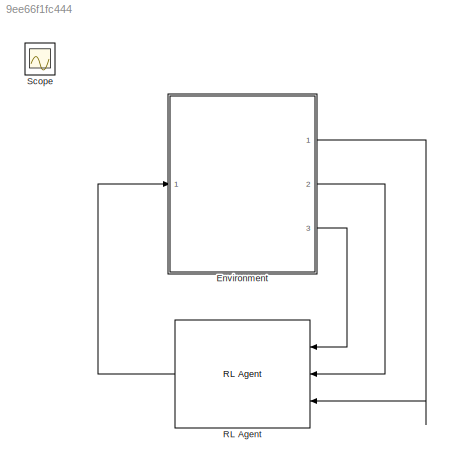
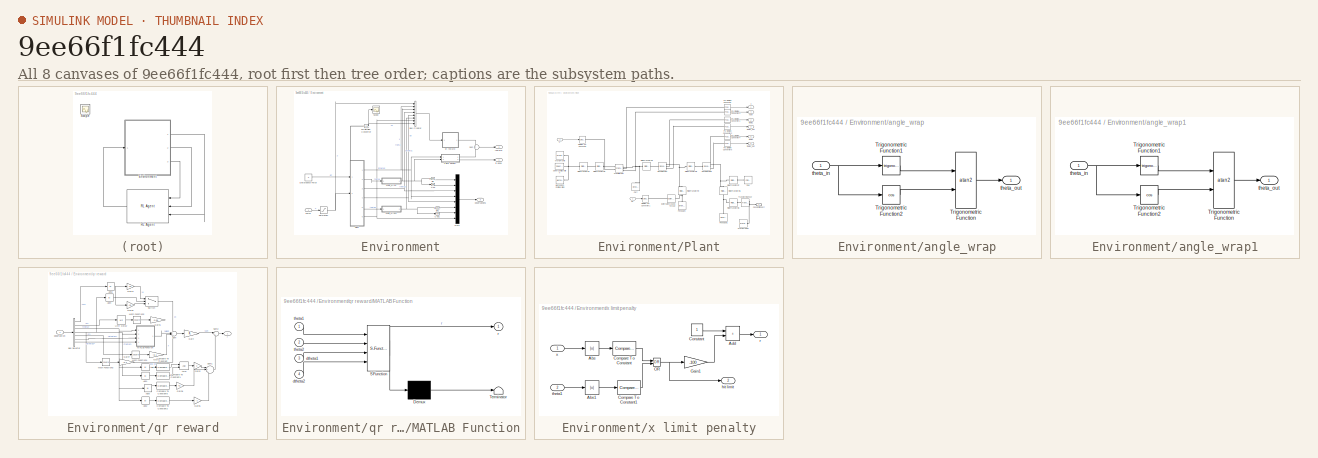
[diagram: thumbnail index - all 8 canvases of the model, root first then tree order]
MODEL slx_9ee66f1fc444
KIND model
CONFIG AbsTol = auto
CONFIG EnableMultiTasking = off
CONFIG FixedStep = auto
CONFIG MaxStep = auto
CONFIG MinStep = auto
CONFIG RelTol = 1e-3
CONFIG SampleTimeConstraint = Unconstrained
CONFIG SolverName = VariableStepAuto
CONFIG StartTime = 0.0
CONFIG StopTime = 10.0
BLOCK [SubSystem] Environment
  Ports = [1, 3]
  RequestExecContextInheritance = off
BLOCK [BusCreator] Environment/Bus Creator
  DisplayOption = bar
  InheritFromInputs = on
  Inputs = 8
  Ports = [8, 1]
BLOCK [Trigonometry] Environment/Cos
  Operator = cos
  Ports = [1, 1]
BLOCK [Trigonometry] Environment/Cos1
  Operator = cos
  Ports = [1, 1]
BLOCK [Constant] Environment/Disturbance Force
  Value = 0
BLOCK [Inport] Environment/Force
BLOCK [Mux] Environment/Mux1
  DisplayOption = bar
  Inputs = 8
  Ports = [8, 1]
BLOCK [Reference] Environment/PS-Simulink Converter  REF=nesl_utility/PS-Simulink
Converter
  Ports = [0, 1, 0, 0, 0, 1]
  SourceBlock = nesl_utility/PS-Simulink\nConverter
  SourceProductBaseCode = PW,SS
  SourceType = PS-Simulink\nConverter
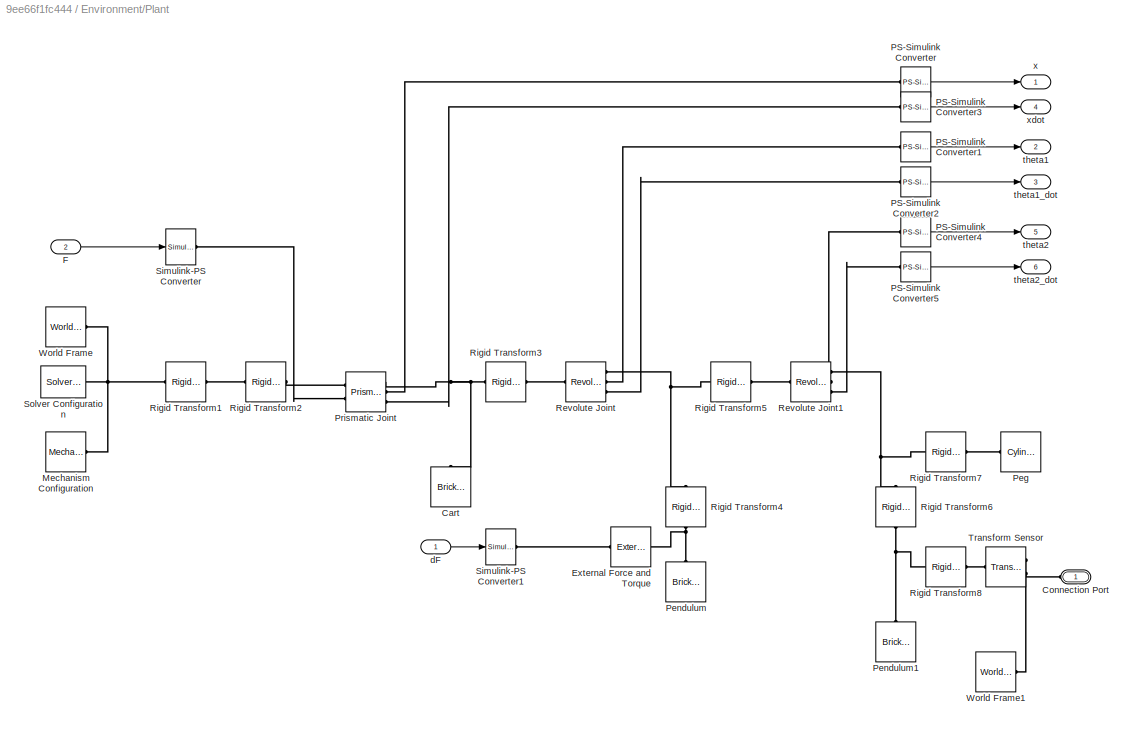
BLOCK [SubSystem] Environment/Plant
  PortSchema = {"entries":[{"content":{"sides":[{"content":{"connectorIds":["In1","In2"]},"type":"ConnectorPlacement.EquallySpacedRectSide","uuid":"779d19eb-a720-4e7e-8892-25cfee938fdb"},{"content":{"connectorIds":["Out1","Out2","Out3","Out4","Out5","Out6"],"side":"RIGHT"},"type":"ConnectorPlacement.EquallySpacedRectSide","uuid":"3de84fcb-1dc7-411b-b896-cb30b770d570"},{"content":{"connectorIds":["LConn1"],"side"...<+289ch>
  Ports = [2, 6, 0, 0, 0, 1]
  RequestExecContextInheritance = off
BLOCK [Reference] Environment/Plant/Cart  REF=sm_lib/Body Elements/Brick Solid
  NameLocation = right
  Ports = [0, 0, 0, 0, 0, 0, 1]
  SourceBlock = sm_lib/Body Elements/Brick Solid
  SourceProductBaseCode = MS
  SourceType = Brick Solid
BLOCK [PMIOPort] Environment/Plant/Connection Port
  NameLocation = top
  Side = Left
BLOCK [Reference] Environment/Plant/External Force and Torque  REF=sm_lib/Forces and
Torques/External Force
and Torque
  Ports = [0, 0, 0, 0, 0, 1, 1]
  SourceBlock = sm_lib/Forces and\nTorques/External Force\nand Torque
  SourceProductBaseCode = MS
  SourceType = External Force\nand Torque
BLOCK [Inport] Environment/Plant/F
  Port = 2
BLOCK [Reference] Environment/Plant/Mechanism Configuration  REF=sm_lib/Utilities/Mechanism
Configuration
  Ports = [0, 0, 0, 0, 0, 0, 1]
  SourceBlock = sm_lib/Utilities/Mechanism\nConfiguration
  SourceProductBaseCode = MS
  SourceType = Mechanism\nConfiguration
BLOCK [Reference] Environment/Plant/PS-Simulink Converter  REF=nesl_utility/PS-Simulink
Converter
  Ports = [0, 1, 0, 0, 0, 1]
  SourceBlock = nesl_utility/PS-Simulink\nConverter
  SourceProductBaseCode = PW,SS
  SourceType = PS-Simulink\nConverter
BLOCK [Reference] Environment/Plant/PS-Simulink Converter1  REF=nesl_utility/PS-Simulink
Converter
  Ports = [0, 1, 0, 0, 0, 1]
  SourceBlock = nesl_utility/PS-Simulink\nConverter
  SourceProductBaseCode = PW,SS
  SourceType = PS-Simulink\nConverter
BLOCK [Reference] Environment/Plant/PS-Simulink Converter2  REF=nesl_utility/PS-Simulink
Converter
  Ports = [0, 1, 0, 0, 0, 1]
  SourceBlock = nesl_utility/PS-Simulink\nConverter
  SourceProductBaseCode = PW,SS
  SourceType = PS-Simulink\nConverter
BLOCK [Reference] Environment/Plant/PS-Simulink Converter3  REF=nesl_utility/PS-Simulink
Converter
  Ports = [0, 1, 0, 0, 0, 1]
  SourceBlock = nesl_utility/PS-Simulink\nConverter
  SourceProductBaseCode = PW,SS
  SourceType = PS-Simulink\nConverter
BLOCK [Reference] Environment/Plant/PS-Simulink Converter4  REF=nesl_utility/PS-Simulink
Converter
  Ports = [0, 1, 0, 0, 0, 1]
  SourceBlock = nesl_utility/PS-Simulink\nConverter
  SourceProductBaseCode = PW,SS
  SourceType = PS-Simulink\nConverter
BLOCK [Reference] Environment/Plant/PS-Simulink Converter5  REF=nesl_utility/PS-Simulink
Converter
  Ports = [0, 1, 0, 0, 0, 1]
  SourceBlock = nesl_utility/PS-Simulink\nConverter
  SourceProductBaseCode = PW,SS
  SourceType = PS-Simulink\nConverter
BLOCK [Reference] Environment/Plant/Peg  REF=sm_lib/Body Elements/Cylindrical Solid
  NameLocation = top
  Ports = [0, 0, 0, 0, 0, 0, 1]
  SourceBlock = sm_lib/Body Elements/Cylindrical Solid
  SourceProductBaseCode = MS
  SourceType = Cylindrical Solid
BLOCK [Reference] Environment/Plant/Pendulum  REF=sm_lib/Body Elements/Brick Solid
  NameLocation = right
  Ports = [0, 0, 0, 0, 0, 0, 1]
  SourceBlock = sm_lib/Body Elements/Brick Solid
  SourceProductBaseCode = MS
  SourceType = Brick Solid
BLOCK [Reference] Environment/Plant/Pendulum1  REF=sm_lib/Body Elements/Brick Solid
  NameLocation = right
  Ports = [0, 0, 0, 0, 0, 0, 1]
  SourceBlock = sm_lib/Body Elements/Brick Solid
  SourceProductBaseCode = MS
  SourceType = Brick Solid
BLOCK [Reference] Environment/Plant/Prismatic Joint  REF=sm_lib/Joints/Prismatic
Joint
  Ports = [0, 0, 0, 0, 0, 2, 3]
  SourceBlock = sm_lib/Joints/Prismatic\nJoint
  SourceProductBaseCode = MS
  SourceType = Prismatic\nJoint
BLOCK [Reference] Environment/Plant/Revolute Joint  REF=sm_lib/Joints/Revolute Joint
  Ports = [0, 0, 0, 0, 0, 1, 3]
  SourceBlock = sm_lib/Joints/Revolute Joint
  SourceProductBaseCode = MS
  SourceType = Revolute Joint
BLOCK [Reference] Environment/Plant/Revolute Joint1  REF=sm_lib/Joints/Revolute Joint
  Ports = [0, 0, 0, 0, 0, 1, 3]
  SourceBlock = sm_lib/Joints/Revolute Joint
  SourceProductBaseCode = MS
  SourceType = Revolute Joint
BLOCK [Reference] Environment/Plant/Rigid Transform1  REF=sm_lib/Frames and
Transforms/Rigid
Transform
  Ports = [0, 0, 0, 0, 0, 1, 1]
  SourceBlock = sm_lib/Frames and\nTransforms/Rigid\nTransform
  SourceProductBaseCode = MS
  SourceType = Rigid\nTransform
BLOCK [Reference] Environment/Plant/Rigid Transform2  REF=sm_lib/Frames and
Transforms/Rigid
Transform
  Ports = [0, 0, 0, 0, 0, 1, 1]
  SourceBlock = sm_lib/Frames and\nTransforms/Rigid\nTransform
  SourceProductBaseCode = MS
  SourceType = Rigid\nTransform
BLOCK [Reference] Environment/Plant/Rigid Transform3  REF=sm_lib/Frames and
Transforms/Rigid
Transform
  Ports = [0, 0, 0, 0, 0, 1, 1]
  SourceBlock = sm_lib/Frames and\nTransforms/Rigid\nTransform
  SourceProductBaseCode = MS
  SourceType = Rigid\nTransform
BLOCK [Reference] Environment/Plant/Rigid Transform4  REF=sm_lib/Frames and
Transforms/Rigid
Transform
  NameLocation = left
  Ports = [0, 0, 0, 0, 0, 1, 1]
  SourceBlock = sm_lib/Frames and\nTransforms/Rigid\nTransform
  SourceProductBaseCode = MS
  SourceType = Rigid\nTransform
BLOCK [Reference] Environment/Plant/Rigid Transform5  REF=sm_lib/Frames and
Transforms/Rigid
Transform
  Ports = [0, 0, 0, 0, 0, 1, 1]
  SourceBlock = sm_lib/Frames and\nTransforms/Rigid\nTransform
  SourceProductBaseCode = MS
  SourceType = Rigid\nTransform
BLOCK [Reference] Environment/Plant/Rigid Transform6  REF=sm_lib/Frames and
Transforms/Rigid
Transform
  NameLocation = left
  Ports = [0, 0, 0, 0, 0, 1, 1]
  SourceBlock = sm_lib/Frames and\nTransforms/Rigid\nTransform
  SourceProductBaseCode = MS
  SourceType = Rigid\nTransform
BLOCK [Reference] Environment/Plant/Rigid Transform7  REF=sm_lib/Frames and
Transforms/Rigid
Transform
  Ports = [0, 0, 0, 0, 0, 1, 1]
  SourceBlock = sm_lib/Frames and\nTransforms/Rigid\nTransform
  SourceProductBaseCode = MS
  SourceType = Rigid\nTransform
BLOCK [Reference] Environment/Plant/Rigid Transform8  REF=sm_lib/Frames and
Transforms/Rigid
Transform
  Ports = [0, 0, 0, 0, 0, 1, 1]
  SourceBlock = sm_lib/Frames and\nTransforms/Rigid\nTransform
  SourceProductBaseCode = MS
  SourceType = Rigid\nTransform
BLOCK [Reference] Environment/Plant/Simulink-PS Converter  REF=nesl_utility/Simulink-PS
Converter
  Ports = [1, 0, 0, 0, 0, 0, 1]
  SourceBlock = nesl_utility/Simulink-PS\nConverter
  SourceProductBaseCode = PW,SS
  SourceType = Simulink-PS\nConverter
BLOCK [Reference] Environment/Plant/Simulink-PS Converter1  REF=nesl_utility/Simulink-PS
Converter
  Ports = [1, 0, 0, 0, 0, 0, 1]
  SourceBlock = nesl_utility/Simulink-PS\nConverter
  SourceProductBaseCode = PW,SS
  SourceType = Simulink-PS\nConverter
BLOCK [Reference] Environment/Plant/Solver Configuration  REF=nesl_utility/Solver
Configuration
  Ports = [0, 0, 0, 0, 0, 0, 1]
  SourceBlock = nesl_utility/Solver\nConfiguration
  SourceProductBaseCode = PW,SS
  SourceType = Solver\nConfiguration
BLOCK [Reference] Environment/Plant/Transform Sensor  REF=sm_lib/Frames and
Transforms/Transform
Sensor
  Ports = [0, 0, 0, 0, 0, 1, 2]
  SourceBlock = sm_lib/Frames and\nTransforms/Transform\nSensor
  SourceProductBaseCode = MS
  SourceType = Transform\nSensor
BLOCK [Reference] Environment/Plant/World Frame  REF=sm_lib/Frames and
Transforms/World Frame
  Ports = [0, 0, 0, 0, 0, 0, 1]
  SourceBlock = sm_lib/Frames and\nTransforms/World Frame
  SourceProductBaseCode = MS
  SourceType = World Frame
BLOCK [Reference] Environment/Plant/World Frame1  REF=sm_lib/Frames and
Transforms/World Frame
  Ports = [0, 0, 0, 0, 0, 0, 1]
  SourceBlock = sm_lib/Frames and\nTransforms/World Frame
  SourceProductBaseCode = MS
  SourceType = World Frame
BLOCK [Inport] Environment/Plant/dF
BLOCK [Outport] Environment/Plant/theta1
  Port = 2
  VectorParamsAs1DForOutWhenUnconnected = off
BLOCK [Outport] Environment/Plant/theta1_dot
  Port = 3
  VectorParamsAs1DForOutWhenUnconnected = off
BLOCK [Outport] Environment/Plant/theta2
  Port = 5
  VectorParamsAs1DForOutWhenUnconnected = off
BLOCK [Outport] Environment/Plant/theta2_dot
  Port = 6
  VectorParamsAs1DForOutWhenUnconnected = off
BLOCK [Outport] Environment/Plant/x
  VectorParamsAs1DForOutWhenUnconnected = off
BLOCK [Outport] Environment/Plant/xdot
  Port = 4
  VectorParamsAs1DForOutWhenUnconnected = off
BLOCK [Saturate] Environment/Saturation
  LowerLimit = -20
  UpperLimit = 20
BLOCK [Scope] Environment/Scope
  Commented = on
  Floating = off
  NumInputPorts = 1
  Ports = [1]
  ScopeSpecificationString = Simulink.scopes.TimeScopeBlockCfg('CurrentConfiguration', extmgr.ConfigurationSet(extmgr.Configuration('Core','General UI',true),extmgr.Configuration('Core','Source UI',true),extmgr.Configuration('Sources','WiredSimulink',true),extmgr.Configuration('Visuals','Time Domain',true,'SerializedDisplays',{struct('MinYLimReal','-14.54995','MaxYLimReal','18.67644','YLabelReal','','MinYLimMag','0.00000','Ma...<+1361ch>
BLOCK [Trigonometry] Environment/Sin
  Ports = [1, 1]
BLOCK [Trigonometry] Environment/Sin1
  Ports = [1, 1]
BLOCK [Sum] Environment/Sum
  Ports = [2, 1]
BLOCK [SubSystem] Environment/angle_wrap
  Ports = [1, 1]
  RequestExecContextInheritance = off
BLOCK [Trigonometry] Environment/angle_wrap/Trigonometric Function
  Operator = atan2
  Ports = [2, 1]
BLOCK [Trigonometry] Environment/angle_wrap/Trigonometric Function1
  Ports = [1, 1]
BLOCK [Trigonometry] Environment/angle_wrap/Trigonometric Function2
  Operator = cos
  Ports = [1, 1]
BLOCK [Inport] Environment/angle_wrap/theta_in
BLOCK [Outport] Environment/angle_wrap/theta_out
  VectorParamsAs1DForOutWhenUnconnected = off
BLOCK [SubSystem] Environment/angle_wrap1
  Ports = [1, 1]
  RequestExecContextInheritance = off
BLOCK [Trigonometry] Environment/angle_wrap1/Trigonometric Function
  Operator = atan2
  Ports = [2, 1]
BLOCK [Trigonometry] Environment/angle_wrap1/Trigonometric Function1
  Ports = [1, 1]
BLOCK [Trigonometry] Environment/angle_wrap1/Trigonometric Function2
  Operator = cos
  Ports = [1, 1]
BLOCK [Inport] Environment/angle_wrap1/theta_in
BLOCK [Outport] Environment/angle_wrap1/theta_out
  VectorParamsAs1DForOutWhenUnconnected = off
BLOCK [Outport] Environment/is done
  VectorParamsAs1DForOutWhenUnconnected = off
BLOCK [Outport] Environment/observations
  Port = 3
  VectorParamsAs1DForOutWhenUnconnected = off
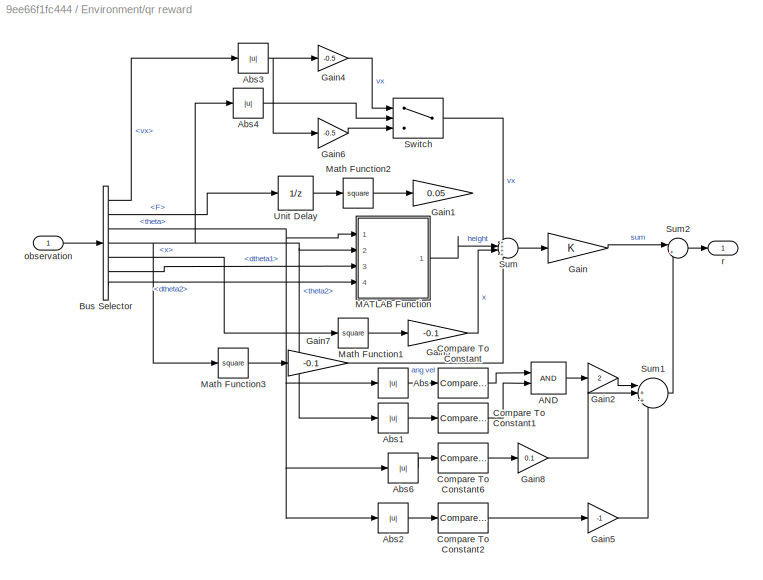
BLOCK [SubSystem] Environment/qr reward
  Ports = [1, 1]
  RequestExecContextInheritance = off
BLOCK [Logic] Environment/qr reward/AND
  AllPortsSameDT = off
  Commented = on
  IconShape = distinctive
  OutDataTypeStr = boolean
  Ports = [2, 1]
BLOCK [Abs] Environment/qr reward/Abs
  Commented = on
  SaturateOnIntegerOverflow = off
BLOCK [Abs] Environment/qr reward/Abs1
  Commented = on
  SaturateOnIntegerOverflow = off
BLOCK [Abs] Environment/qr reward/Abs2
  Commented = on
  SaturateOnIntegerOverflow = off
BLOCK [Abs] Environment/qr reward/Abs3
  SaturateOnIntegerOverflow = off
BLOCK [Abs] Environment/qr reward/Abs4
  SaturateOnIntegerOverflow = off
BLOCK [Abs] Environment/qr reward/Abs6
  Commented = on
  SaturateOnIntegerOverflow = off
BLOCK [BusSelector] Environment/qr reward/Bus Selector
  OutputSignals = vx,F,theta,theta2,x,dtheta1,dtheta2
  Ports = [1, 7]
BLOCK [Reference] Environment/qr reward/Compare To Constant  REF=simulink/Logic and Bit
Operations/Compare
To Constant
  Commented = on
  Ports = [1, 1]
  SourceBlock = simulink/Logic and Bit\nOperations/Compare\nTo Constant
  SourceProductBaseCode = SL
  SourceType = Compare To Constant
BLOCK [Reference] Environment/qr reward/Compare To Constant1  REF=simulink/Logic and Bit
Operations/Compare
To Constant
  Commented = on
  Ports = [1, 1]
  SourceBlock = simulink/Logic and Bit\nOperations/Compare\nTo Constant
  SourceProductBaseCode = SL
  SourceType = Compare To Constant
BLOCK [Reference] Environment/qr reward/Compare To Constant2  REF=simulink/Logic and Bit
Operations/Compare
To Constant
  Commented = on
  Ports = [1, 1]
  SourceBlock = simulink/Logic and Bit\nOperations/Compare\nTo Constant
  SourceProductBaseCode = SL
  SourceType = Compare To Constant
BLOCK [Reference] Environment/qr reward/Compare To Constant6  REF=simulink/Logic and Bit
Operations/Compare
To Constant
  Commented = on
  Ports = [1, 1]
  SourceBlock = simulink/Logic and Bit\nOperations/Compare\nTo Constant
  SourceProductBaseCode = SL
  SourceType = Compare To Constant
BLOCK [Gain] Environment/qr reward/Gain
BLOCK [Gain] Environment/qr reward/Gain1
  Commented = on
  Gain = 0.05
BLOCK [Gain] Environment/qr reward/Gain2
  Commented = on
  Gain = 2
BLOCK [Gain] Environment/qr reward/Gain3
  Gain = -0.1
BLOCK [Gain] Environment/qr reward/Gain4
  Gain = -0.5
BLOCK [Gain] Environment/qr reward/Gain5
  Commented = on
  Gain = -1
BLOCK [Gain] Environment/qr reward/Gain6
  Gain = -0.5
BLOCK [Gain] Environment/qr reward/Gain7
  Commented = on
  Gain = -0.1
BLOCK [Gain] Environment/qr reward/Gain8
  Commented = on
  Gain = 0.1
BLOCK [SubSystem] Environment/qr reward/MATLAB Function
  ErrorFcn = Stateflow.Translate.translate
  PermitHierarchicalResolution = ExplicitOnly
  Ports = [4, 1]
  RequestExecContextInheritance = off
  SFBlockType = MATLAB Function
  TreatAsAtomicUnit = on
BLOCK [Demux] Environment/qr reward/MATLAB Function/ Demux 
  Outputs = 1
  Ports = [1, 1]
BLOCK [S-Function] Environment/qr reward/MATLAB Function/ SFunction 
  EnableBusSupport = on
  FunctionName = sf_sfun
  PortCounts = [4 2]
  Ports = [4, 2]
  SFcnIsStateOwnerBlock = off
  SFunctionDeploymentMode = off
  Tag = Stateflow S-Function 2
BLOCK [Terminator] Environment/qr reward/MATLAB Function/ Terminator 
BLOCK [Inport] Environment/qr reward/MATLAB Function/dtheta1
  Port = 3
BLOCK [Inport] Environment/qr reward/MATLAB Function/dtheta2
  Port = 4
BLOCK [Outport] Environment/qr reward/MATLAB Function/r
BLOCK [Inport] Environment/qr reward/MATLAB Function/theta1
BLOCK [Inport] Environment/qr reward/MATLAB Function/theta2
  Port = 2
BLOCK [Math] Environment/qr reward/Math Function1
  Operator = square
  Ports = [1, 1]
  SignedPower = on
BLOCK [Math] Environment/qr reward/Math Function2
  Commented = on
  Operator = square
  Ports = [1, 1]
  SignedPower = on
BLOCK [Math] Environment/qr reward/Math Function3
  Commented = on
  Operator = square
  Ports = [1, 1]
  SignedPower = on
BLOCK [Sum] Environment/qr reward/Sum
  Inputs = ++++
  Ports = [4, 1]
BLOCK [Sum] Environment/qr reward/Sum1
  Commented = on
  Inputs = |+++
  Ports = [3, 1]
BLOCK [Sum] Environment/qr reward/Sum2
  Inputs = |++
  Ports = [2, 1]
BLOCK [Switch] Environment/qr reward/Switch
  Criteria = u2 > Threshold
  InputSameDT = off
  SaturateOnIntegerOverflow = off
  Threshold = 50*pi/180
BLOCK [UnitDelay] Environment/qr reward/Unit Delay
  Commented = on
  HasFrameUpgradeWarning = on
  SampleTime = Ts
BLOCK [Inport] Environment/qr reward/observation
BLOCK [Outport] Environment/qr reward/r
  VectorParamsAs1DForOutWhenUnconnected = off
BLOCK [Outport] Environment/reward
  Port = 2
  VectorParamsAs1DForOutWhenUnconnected = off
BLOCK [SubSystem] Environment/x limit penalty
  Ports = [2, 2]
  RequestExecContextInheritance = off
BLOCK [Abs] Environment/x limit penalty/Abs
  SaturateOnIntegerOverflow = off
BLOCK [Abs] Environment/x limit penalty/Abs1
  Commented = on
  SaturateOnIntegerOverflow = off
BLOCK [Sum] Environment/x limit penalty/Add
  IconShape = rectangular
  Ports = [2, 1]
BLOCK [Reference] Environment/x limit penalty/Compare To Constant  REF=simulink/Logic and Bit
Operations/Compare
To Constant
  Ports = [1, 1]
  SourceBlock = simulink/Logic and Bit\nOperations/Compare\nTo Constant
  SourceProductBaseCode = SL
  SourceType = Compare To Constant
BLOCK [Reference] Environment/x limit penalty/Compare To Constant1  REF=simulink/Logic and Bit
Operations/Compare
To Constant
  Commented = on
  Ports = [1, 1]
  SourceBlock = simulink/Logic and Bit\nOperations/Compare\nTo Constant
  SourceProductBaseCode = SL
  SourceType = Compare To Constant
BLOCK [Constant] Environment/x limit penalty/Constant
  Commented = on
BLOCK [Gain] Environment/x limit penalty/Gain1
  Gain = -100
BLOCK [Logic] Environment/x limit penalty/OR
  AllPortsSameDT = off
  IconShape = distinctive
  Operator = OR
  OutDataTypeStr = boolean
  Ports = [2, 1]
BLOCK [Outport] Environment/x limit penalty/hit limit
  Port = 2
  VectorParamsAs1DForOutWhenUnconnected = off
BLOCK [Outport] Environment/x limit penalty/r
  VectorParamsAs1DForOutWhenUnconnected = off
BLOCK [Inport] Environment/x limit penalty/theta1
  Port = 2
BLOCK [Inport] Environment/x limit penalty/x
BLOCK [Reference] RL Agent  REF=rllib/RL Agent
  Ports = [3, 1]
  SourceBlock = rllib/RL Agent
  SourceProductBaseCode = RL
  SourceType = RL Agent
BLOCK [Scope] Scope
  Floating = off
  IOType = viewer
  NumInputPorts = 1
  Ports = []
  ScopeSpecificationString = Simulink.scopes.TimeScopeBlockCfg('CurrentConfiguration', extmgr.ConfigurationSet(extmgr.Configuration('Core','General UI',true),extmgr.Configuration('Core','Source UI',true),extmgr.Configuration('Sources','WiredSimulink',true,'DataLoggingVariableName','ScopeData1'),extmgr.Configuration('Visuals','Time Domain',true,'InputProcessing','FrameProcessing','SerializedDisplays',{struct('MinYLimReal','-8....<+4849ch>
LINE Environment/Bus Creator:1 -> Environment/qr reward:1
LINE Environment/Cos1:1 -> Environment/Mux1:7
LINE Environment/Cos:1 -> Environment/Mux1:2
LINE Environment/Disturbance Force:1 -> Environment/Plant:1
LINE Environment/Force:1 -> Environment/Saturation:1
LINE Environment/Mux1:1 -> Environment/observations:1
NET Environment/PS-Simulink Converter:1 -> Environment/Bus Creator:8, Environment/Scope:1
LINE Environment/Plant/F:1 -> Environment/Plant/Simulink-PS Converter:1
LINE Environment/Plant/PS-Simulink Converter1:1 -> Environment/Plant/theta1:1
LINE Environment/Plant/PS-Simulink Converter2:1 -> Environment/Plant/theta1_dot:1
LINE Environment/Plant/PS-Simulink Converter3:1 -> Environment/Plant/xdot:1
LINE Environment/Plant/PS-Simulink Converter4:1 -> Environment/Plant/theta2:1
LINE Environment/Plant/PS-Simulink Converter5:1 -> Environment/Plant/theta2_dot:1
LINE Environment/Plant/PS-Simulink Converter:1 -> Environment/Plant/x:1
LINE Environment/Plant/dF:1 -> Environment/Plant/Simulink-PS Converter1:1
NET Environment/Plant:1 -> Environment/Bus Creator:2, Environment/Mux1:4, Environment/x limit penalty:1
LINE Environment/Plant:2 -> Environment/angle_wrap:1
NET Environment/Plant:3 -> Environment/Bus Creator:4, Environment/Mux1:3
NET Environment/Plant:4 -> Environment/Bus Creator:5, Environment/Mux1:5
LINE Environment/Plant:5 -> Environment/angle_wrap1:1
NET Environment/Plant:6 -> Environment/Bus Creator:7, Environment/Mux1:8
NET Environment/Saturation:1 -> Environment/Bus Creator:1, Environment/Plant:2
LINE Environment/Sin1:1 -> Environment/Mux1:6
LINE Environment/Sin:1 -> Environment/Mux1:1
LINE Environment/Sum:1 -> Environment/reward:1
LINE Environment/angle_wrap/Trigonometric Function1:1 -> Environment/angle_wrap/Trigonometric Function:1
LINE Environment/angle_wrap/Trigonometric Function2:1 -> Environment/angle_wrap/Trigonometric Function:2
LINE Environment/angle_wrap/Trigonometric Function:1 -> Environment/angle_wrap/theta_out:1
NET Environment/angle_wrap/theta_in:1 -> Environment/angle_wrap/Trigonometric Function1:1, Environment/angle_wrap/Trigonometric Function2:1
LINE Environment/angle_wrap1/Trigonometric Function1:1 -> Environment/angle_wrap1/Trigonometric Function:1
LINE Environment/angle_wrap1/Trigonometric Function2:1 -> Environment/angle_wrap1/Trigonometric Function:2
LINE Environment/angle_wrap1/Trigonometric Function:1 -> Environment/angle_wrap1/theta_out:1
NET Environment/angle_wrap1/theta_in:1 -> Environment/angle_wrap1/Trigonometric Function1:1, Environment/angle_wrap1/Trigonometric Function2:1
NET Environment/angle_wrap1:1 -> Environment/Bus Creator:6, Environment/Cos1:1, Environment/Sin1:1
NET Environment/angle_wrap:1 -> Environment/Bus Creator:3, Environment/Cos:1, Environment/Sin:1, Environment/x limit penalty:2
LINE Environment/qr reward/AND:1 -> Environment/qr reward/Gain2:1
LINE Environment/qr reward/Abs1:1 -> Environment/qr reward/Compare To Constant1:1
LINE Environment/qr reward/Abs2:1 -> Environment/qr reward/Compare To Constant2:1
NET Environment/qr reward/Abs3:1 -> Environment/qr reward/Gain4:1, Environment/qr reward/Gain6:1
LINE Environment/qr reward/Abs4:1 -> Environment/qr reward/Switch:2
LINE Environment/qr reward/Abs6:1 -> Environment/qr reward/Compare To Constant6:1
LINE Environment/qr reward/Abs:1 -> Environment/qr reward/Compare To Constant:1
LINE Environment/qr reward/Bus Selector:1 -> Environment/qr reward/Abs3:1
LINE Environment/qr reward/Bus Selector:2 -> Environment/qr reward/Unit Delay:1
NET Environment/qr reward/Bus Selector:3 -> Environment/qr reward/Abs2:1, Environment/qr reward/Abs6:1, Environment/qr reward/Abs:1, Environment/qr reward/MATLAB Function:1
NET Environment/qr reward/Bus Selector:4 -> Environment/qr reward/Abs1:1, Environment/qr reward/Abs4:1, Environment/qr reward/MATLAB Function:2, Environment/qr reward/Math Function3:1
LINE Environment/qr reward/Bus Selector:5 -> Environment/qr reward/Math Function1:1
LINE Environment/qr reward/Bus Selector:6 -> Environment/qr reward/MATLAB Function:3
LINE Environment/qr reward/Bus Selector:7 -> Environment/qr reward/MATLAB Function:4
LINE Environment/qr reward/Compare To Constant1:1 -> Environment/qr reward/AND:2
LINE Environment/qr reward/Compare To Constant2:1 -> Environment/qr reward/Gain5:1
LINE Environment/qr reward/Compare To Constant6:1 -> Environment/qr reward/Gain8:1
LINE Environment/qr reward/Compare To Constant:1 -> Environment/qr reward/AND:1
LINE Environment/qr reward/Gain2:1 -> Environment/qr reward/Sum1:1
LINE Environment/qr reward/Gain3:1 -> Environment/qr reward/Sum:3
LINE Environment/qr reward/Gain4:1 -> Environment/qr reward/Switch:1
LINE Environment/qr reward/Gain5:1 -> Environment/qr reward/Sum1:3
LINE Environment/qr reward/Gain6:1 -> Environment/qr reward/Switch:3
LINE Environment/qr reward/Gain7:1 -> Environment/qr reward/Sum:4
LINE Environment/qr reward/Gain8:1 -> Environment/qr reward/Sum1:2
LINE Environment/qr reward/Gain:1 -> Environment/qr reward/Sum2:1
LINE Environment/qr reward/MATLAB Function:1 -> Environment/qr reward/Sum:2
LINE Environment/qr reward/Math Function1:1 -> Environment/qr reward/Gain3:1
LINE Environment/qr reward/Math Function2:1 -> Environment/qr reward/Gain1:1
LINE Environment/qr reward/Math Function3:1 -> Environment/qr reward/Gain7:1
LINE Environment/qr reward/Sum1:1 -> Environment/qr reward/Sum2:2
LINE Environment/qr reward/Sum2:1 -> Environment/qr reward/r:1
LINE Environment/qr reward/Sum:1 -> Environment/qr reward/Gain:1
LINE Environment/qr reward/Switch:1 -> Environment/qr reward/Sum:1
LINE Environment/qr reward/Unit Delay:1 -> Environment/qr reward/Math Function2:1
LINE Environment/qr reward/observation:1 -> Environment/qr reward/Bus Selector:1
LINE Environment/qr reward:1 -> Environment/Sum:1
LINE Environment/x limit penalty/Abs1:1 -> Environment/x limit penalty/Compare To Constant1:1
LINE Environment/x limit penalty/Abs:1 -> Environment/x limit penalty/Compare To Constant:1
LINE Environment/x limit penalty/Add:1 -> Environment/x limit penalty/r:1
LINE Environment/x limit penalty/Compare To Constant1:1 -> Environment/x limit penalty/OR:2
LINE Environment/x limit penalty/Compare To Constant:1 -> Environment/x limit penalty/OR:1
LINE Environment/x limit penalty/Constant:1 -> Environment/x limit penalty/Add:1
LINE Environment/x limit penalty/Gain1:1 -> Environment/x limit penalty/Add:2
NET Environment/x limit penalty/OR:1 -> Environment/x limit penalty/Gain1:1, Environment/x limit penalty/hit limit:1
LINE Environment/x limit penalty/theta1:1 -> Environment/x limit penalty/Abs1:1
LINE Environment/x limit penalty/x:1 -> Environment/x limit penalty/Abs:1
LINE Environment/x limit penalty:1 -> Environment/Sum:2
LINE Environment/x limit penalty:2 -> Environment/is done:1
LINE Environment:1 -> RL Agent:3
LINE Environment:2 -> RL Agent:2
LINE Environment:3 -> RL Agent:1
LINE RL Agent:1 -> Environment:1
PLINE Environment/PS-Simulink Converter:LConn1 -- Environment/Plant:LConn1
PNET net1: Environment/Plant/Cart:RConn1 -- Environment/Plant/Prismatic Joint:RConn1 -- Environment/Plant/Rigid Transform3:LConn1
PLINE Environment/Plant/Connection Port:RConn1 -- Environment/Plant/Transform Sensor:RConn2
PLINE Environment/Plant/External Force and Torque:LConn1 -- Environment/Plant/Simulink-PS Converter1:RConn1
PNET net2: Environment/Plant/External Force and Torque:RConn1 -- Environment/Plant/Pendulum:RConn1 -- Environment/Plant/Rigid Transform4:RConn1
PNET net3: Environment/Plant/Mechanism Configuration:RConn1 -- Environment/Plant/Rigid Transform1:LConn1 -- Environment/Plant/Solver Configuration:RConn1 -- Environment/Plant/World Frame:RConn1
PLINE Environment/Plant/PS-Simulink Converter1:LConn1 -- Environment/Plant/Revolute Joint:RConn2
PLINE Environment/Plant/PS-Simulink Converter2:LConn1 -- Environment/Plant/Revolute Joint:RConn3
PLINE Environment/Plant/PS-Simulink Converter3:LConn1 -- Environment/Plant/Prismatic Joint:RConn3
PLINE Environment/Plant/PS-Simulink Converter4:LConn1 -- Environment/Plant/Revolute Joint1:RConn2
PLINE Environment/Plant/PS-Simulink Converter5:LConn1 -- Environment/Plant/Revolute Joint1:RConn3
PLINE Environment/Plant/PS-Simulink Converter:LConn1 -- Environment/Plant/Prismatic Joint:RConn2
PLINE Environment/Plant/Peg:RConn1 -- Environment/Plant/Rigid Transform7:RConn1
PNET net4: Environment/Plant/Pendulum1:RConn1 -- Environment/Plant/Rigid Transform6:RConn1 -- Environment/Plant/Rigid Transform8:LConn1
PLINE Environment/Plant/Prismatic Joint:LConn1 -- Environment/Plant/Rigid Transform2:RConn1
PLINE Environment/Plant/Prismatic Joint:LConn2 -- Environment/Plant/Simulink-PS Converter:RConn1
PLINE Environment/Plant/Revolute Joint1:LConn1 -- Environment/Plant/Rigid Transform5:RConn1
PNET net5: Environment/Plant/Revolute Joint1:RConn1 -- Environment/Plant/Rigid Transform6:LConn1 -- Environment/Plant/Rigid Transform7:LConn1
PLINE Environment/Plant/Revolute Joint:LConn1 -- Environment/Plant/Rigid Transform3:RConn1
PNET net6: Environment/Plant/Revolute Joint:RConn1 -- Environment/Plant/Rigid Transform4:LConn1 -- Environment/Plant/Rigid Transform5:LConn1
PLINE Environment/Plant/Rigid Transform1:RConn1 -- Environment/Plant/Rigid Transform2:LConn1
PLINE Environment/Plant/Rigid Transform8:RConn1 -- Environment/Plant/Transform Sensor:LConn1
PLINE Environment/Plant/Transform Sensor:RConn1 -- Environment/Plant/World Frame1:RConn1
note: NET lines group one-source signal fan-out (src -> all destinations, sorted); 1:1 wires keep LINE; PNET lines group multi-terminal physical nets as a canonical sorted terminal list (undirected conserving connections); 2-terminal nets keep the pairwise PLINE form
CHART Environment/qr reward/MATLAB Function states=1 transitions=1
  STATE_LABEL 'eML_blk_kernel()'
  STATE_LABEL 'SCRIPT:\nfunction r = fcn(theta1,theta2,dtheta1,dtheta2)\n% if abs(theta1) < pi/2\n%     if sign(theta1) == sign(dtheta1)\n%         y1 = dtheta1^2;\n%     else\n%         y1 = 0;\n%     end\n% \n%     if sign(theta2) == sign(dtheta2)\n%         y2 = dtheta2^2;\n%     else\n%         y2 = 0;\n%     end\n% \n%     y = y1 + y2;\n% else\n%     y=0;\n% end\ny = cos(theta1)+cos(theta1+theta2);\nif y > 0\n    r = 2*y;\nelse\n...<+19ch>'
CHART  states=0 transitions=0
